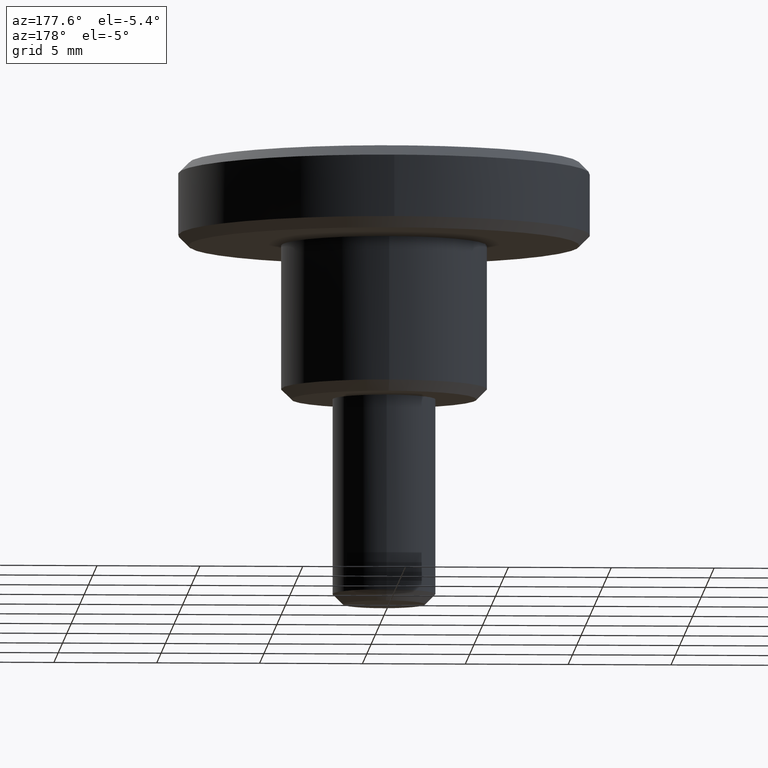
[diagram: clean part render]
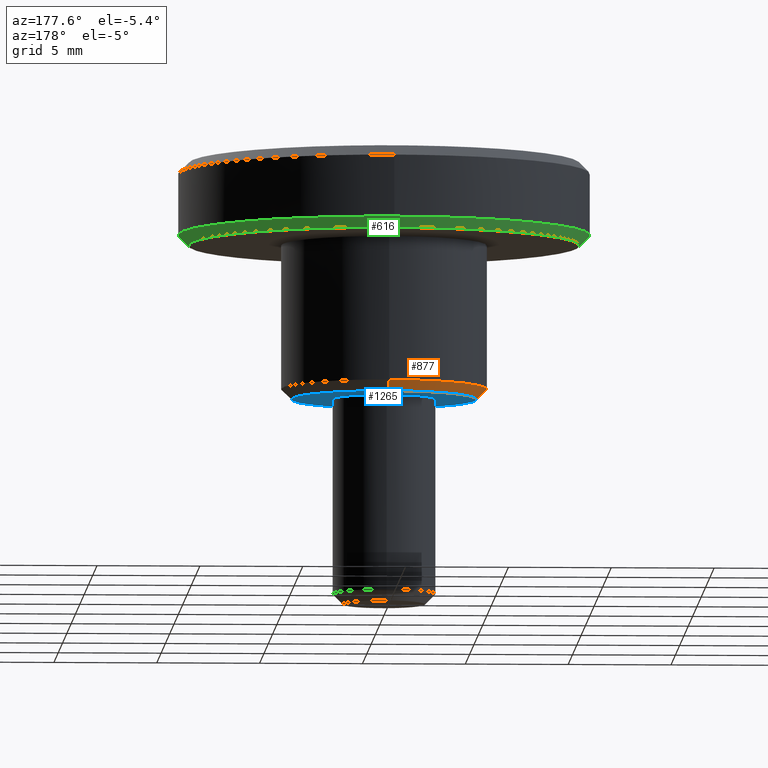
[diagram: same view with three faces highlighted in distinct colors, each labeled with its STEP entity id]
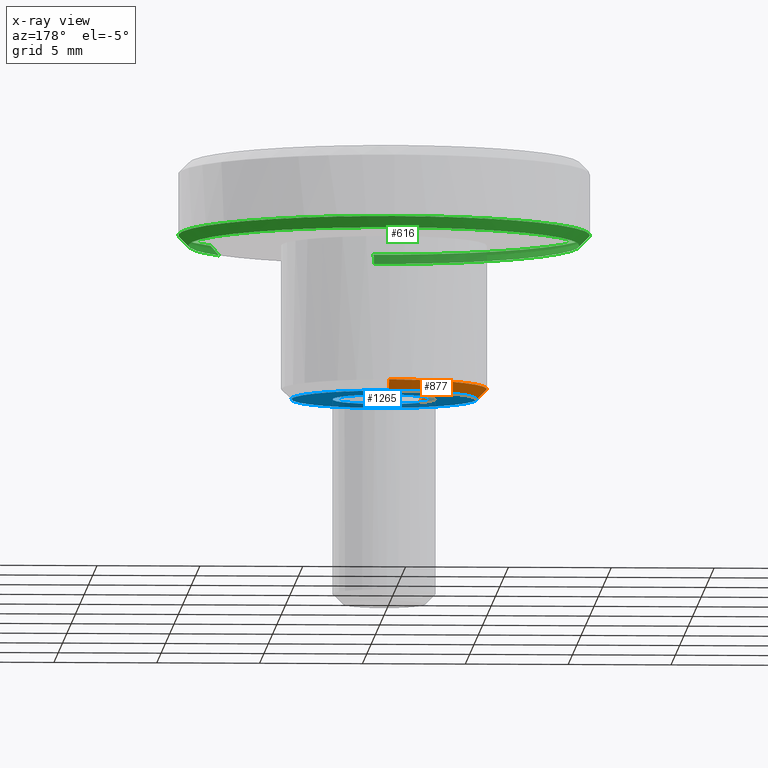
[diagram: x-ray of the same camera — body ghosted, the three highlighted faces saturated]
A machine part, auxiliary view with three faces highlighted in distinct colors.
The next image is the same camera in x-ray (body ghosted, the three faces saturated) — at least one of them is partly hidden behind the body in this view.
Their STEP definitions:

[orange] entity #877 — the highlighted face is a freeform B-spline surface patch.
#699=CARTESIAN_POINT('',(-2.021077159942054,-4.573319047864791,0.500000000000183));
#700=VERTEX_POINT('',#699);
#718=CARTESIAN_POINT('',(-1.818969443966854,-4.115987143071772,1.913012E-012));
#719=VERTEX_POINT('',#718);
#720=CARTESIAN_POINT('',(-1.818969443966854,-4.115987143071772,1.913012E-012));
#721=CARTESIAN_POINT('',(-2.021077159942054,-4.573319047864791,0.500000000000183));
#722=QUASI_UNIFORM_CURVE('',1,(#720,#721),.UNSPECIFIED.,.F.,.U.);
#723=EDGE_CURVE('',#719,#700,#722,.T.);
#742=CARTESIAN_POINT('',(-0.039269409749482,4.499828653789633,9.221313E-013));
#743=VERTEX_POINT('',#742);
#759=CARTESIAN_POINT('',(-0.043630800128547,4.999809631702245,0.499999999999251));
#760=VERTEX_POINT('',#759);
#761=CARTESIAN_POINT('',(-0.039269409749482,4.499828653789633,9.221313E-013));
#762=CARTESIAN_POINT('',(-0.043630800128547,4.999809631702245,0.499999999999251));
#763=QUASI_UNIFORM_CURVE('',1,(#761,#762),.UNSPECIFIED.,.F.,.U.);
#764=EDGE_CURVE('',#743,#760,#763,.T.);
#799=CARTESIAN_POINT('',(-0.039160328048953,4.487329129750467,-0.012499999999999));
#800=CARTESIAN_POINT('',(-4.526489457799420,4.448168801701514,-0.012499999999999));
#801=CARTESIAN_POINT('',(-4.487329129750467,-0.039160328048953,-0.012499999999999));
#802=CARTESIAN_POINT('',(-4.462063944610639,-2.934263788488800,-0.012499999999999));
#803=CARTESIAN_POINT('',(-1.813916751045586,-4.104553845459481,-0.012499999999999));
#804=CARTESIAN_POINT('',(-0.043744486227942,5.012621627460113,0.512812499999944));
#805=CARTESIAN_POINT('',(-5.056366113688056,4.968877141232172,0.512812499999944));
#806=CARTESIAN_POINT('',(-5.012621627460113,-0.043744486227942,0.512812499999944));
#807=CARTESIAN_POINT('',(-4.984398867374600,-3.277752467350195,0.512812499999944));
#808=CARTESIAN_POINT('',(-2.026256170161715,-4.585038177925872,0.512812499999944));
#816=(BOUNDED_SURFACE()B_SPLINE_SURFACE(2,1,((#799,#804),(#800,#805),(#801,#806),(#802,#807),(#803,#808)),.UNSPECIFIED.,.F.,.F.,.U.)B_SPLINE_SURFACE_WITH_KNOTS((3,2,3),(2,2),(0.0,8.305499692533518,14.285459471157649),(0.0,1.0),.UNSPECIFIED.)GEOMETRIC_REPRESENTATION_ITEM()RATIONAL_B_SPLINE_SURFACE(((1.0,1.0),(0.707106781186548,0.707106781186548),(1.0,1.0),(0.789116882454314,0.789116882454314),(0.881905454174416,0.881905454174416)))REPRESENTATION_ITEM('')SURFACE());
#817=CARTESIAN_POINT('',(-5.0,0.0,0.499999999999945));
#818=VERTEX_POINT('',#817);
#819=CARTESIAN_POINT('',(-5.0,0.0,0.499999999999945));
#820=CARTESIAN_POINT('',(-5.0,-3.256850012954106,0.499999999999945));
#821=CARTESIAN_POINT('',(-2.021077159942054,-4.573319047864791,0.500000000000183));
#829=(BOUNDED_CURVE()B_SPLINE_CURVE(2,(#819,#820,#821),.UNSPECIFIED.,.F.,.U.)B_SPLINE_CURVE_WITH_KNOTS((3,3),(0.0,0.181361578459757),.UNSPECIFIED.)CURVE()GEOMETRIC_REPRESENTATION_ITEM()RATIONAL_B_SPLINE_CURVE((1.0,0.787521694063333,0.883326595751699))REPRESENTATION_ITEM(''));
#830=EDGE_CURVE('',#818,#700,#829,.T.);
#831=ORIENTED_EDGE('',*,*,#830,.F.);
#832=CARTESIAN_POINT('',(-0.043630800128547,4.999809631702246,0.499999999999251));
#833=CARTESIAN_POINT('',(-5.000000000000001,4.956557914168263,0.499999999999945));
#834=CARTESIAN_POINT('',(-5.0,0.0,0.499999999999945));
#842=(BOUNDED_CURVE()B_SPLINE_CURVE(2,(#832,#833,#834),.UNSPECIFIED.,.F.,.U.)B_SPLINE_CURVE_WITH_KNOTS((3,3),(0.751539828195666,1.0),.UNSPECIFIED.)CURVE()GEOMETRIC_REPRESENTATION_ITEM()RATIONAL_B_SPLINE_CURVE((0.996414181165367,0.708910802133141,1.0))REPRESENTATION_ITEM(''));
#843=EDGE_CURVE('',#760,#818,#842,.T.);
#844=ORIENTED_EDGE('',*,*,#843,.F.);
#845=ORIENTED_EDGE('',*,*,#764,.F.);
#846=CARTESIAN_POINT('',(-4.500000000000000,0.0,0.0));
#847=VERTEX_POINT('',#846);
#848=CARTESIAN_POINT('',(-4.500000000000000,0.0,0.0));
#849=CARTESIAN_POINT('',(-4.500000000000000,4.460900447663939,0.0));
#850=CARTESIAN_POINT('',(-0.039269409749482,4.499828653789633,9.221313E-013));
#858=(BOUNDED_CURVE()B_SPLINE_CURVE(2,(#848,#849,#850),.UNSPECIFIED.,.F.,.U.)B_SPLINE_CURVE_WITH_KNOTS((3,3),(0.0,0.248460105664481),.UNSPECIFIED.)CURVE()GEOMETRIC_REPRESENTATION_ITEM()RATIONAL_B_SPLINE_CURVE((1.0,0.708910879620798,0.996414028099175))REPRESENTATION_ITEM(''));
#859=EDGE_CURVE('',#847,#743,#858,.T.);
#860=ORIENTED_EDGE('',*,*,#859,.F.);
#861=CARTESIAN_POINT('',(-1.818969443966854,-4.115987143071772,1.913012E-012));
#862=CARTESIAN_POINT('',(-4.500000000000001,-2.931165011630170,0.0));
#863=CARTESIAN_POINT('',(-4.500000000000000,0.0,0.0));
#871=(BOUNDED_CURVE()B_SPLINE_CURVE(2,(#861,#862,#863),.UNSPECIFIED.,.F.,.U.)B_SPLINE_CURVE_WITH_KNOTS((3,3),(0.818638421541633,1.0),.UNSPECIFIED.)CURVE()GEOMETRIC_REPRESENTATION_ITEM()RATIONAL_B_SPLINE_CURVE((0.883326595750230,0.787521694064961,1.0))REPRESENTATION_ITEM(''));
#872=EDGE_CURVE('',#719,#847,#871,.T.);
#873=ORIENTED_EDGE('',*,*,#872,.F.);
#874=ORIENTED_EDGE('',*,*,#723,.T.);
#875=EDGE_LOOP('',(#831,#844,#845,#860,#873,#874));
#876=FACE_OUTER_BOUND('',#875,.T.);
#877=ADVANCED_FACE('',(#876),#816,.T.);

[blue] entity #1265 — the highlighted face is a freeform B-spline surface patch.
#718=CARTESIAN_POINT('',(-1.818969443966854,-4.115987143071772,1.913012E-012));
#719=VERTEX_POINT('',#718);
#725=CARTESIAN_POINT('',(4.500000000000000,0.0,0.0));
#726=VERTEX_POINT('',#725);
#727=CARTESIAN_POINT('',(4.500000000000000,0.0,0.0));
#728=CARTESIAN_POINT('',(4.500000000000000,-4.500000000000000,0.0));
#729=CARTESIAN_POINT('',(0.0,-4.500000000000000,0.0));
#730=CARTESIAN_POINT('',(-0.950020277657045,-4.500000000000001,0.0));
#731=CARTESIAN_POINT('',(-1.818969443966853,-4.115987143071773,1.913012E-012));
#739=(BOUNDED_CURVE()B_SPLINE_CURVE(2,(#727,#728,#729,#730,#731),.UNSPECIFIED.,.F.,.U.)B_SPLINE_CURVE_WITH_KNOTS((3,2,3),(0.500000000000000,0.750000000000000,0.818638421541633),.UNSPECIFIED.)CURVE()GEOMETRIC_REPRESENTATION_ITEM()RATIONAL_B_SPLINE_CURVE((1.0,0.707106781186547,1.0,0.919585087121586,0.883326595750230))REPRESENTATION_ITEM(''));
#740=EDGE_CURVE('',#726,#719,#739,.T.);
#742=CARTESIAN_POINT('',(-0.039269409749482,4.499828653789633,9.221313E-013));
#743=VERTEX_POINT('',#742);
#744=CARTESIAN_POINT('',(-0.039269409749482,4.499828653789633,9.221313E-013));
#745=CARTESIAN_POINT('',(-0.019635078699949,4.499999999999999,0.0));
#746=CARTESIAN_POINT('',(0.0,4.500000000000000,0.0));
#747=CARTESIAN_POINT('',(4.500000000000000,4.500000000000000,0.0));
#748=CARTESIAN_POINT('',(4.500000000000000,0.0,0.0));
#756=(BOUNDED_CURVE()B_SPLINE_CURVE(2,(#744,#745,#746,#747,#748),.UNSPECIFIED.,.F.,.U.)B_SPLINE_CURVE_WITH_KNOTS((3,2,3),(0.248460105664481,0.250000000000000,0.500000000000000),.UNSPECIFIED.)CURVE()GEOMETRIC_REPRESENTATION_ITEM()RATIONAL_B_SPLINE_CURVE((0.996414028099175,0.998195901565749,1.0,0.707106781186547,1.0))REPRESENTATION_ITEM(''));
#757=EDGE_CURVE('',#743,#726,#756,.T.);
#846=CARTESIAN_POINT('',(-4.500000000000000,0.0,0.0));
#847=VERTEX_POINT('',#846);
#848=CARTESIAN_POINT('',(-4.500000000000000,0.0,0.0));
#849=CARTESIAN_POINT('',(-4.500000000000000,4.460900447663939,0.0));
#850=CARTESIAN_POINT('',(-0.039269409749482,4.499828653789633,9.221313E-013));
#858=(BOUNDED_CURVE()B_SPLINE_CURVE(2,(#848,#849,#850),.UNSPECIFIED.,.F.,.U.)B_SPLINE_CURVE_WITH_KNOTS((3,3),(0.0,0.248460105664481),.UNSPECIFIED.)CURVE()GEOMETRIC_REPRESENTATION_ITEM()RATIONAL_B_SPLINE_CURVE((1.0,0.708910879620798,0.996414028099175))REPRESENTATION_ITEM(''));
#859=EDGE_CURVE('',#847,#743,#858,.T.);
#861=CARTESIAN_POINT('',(-1.818969443966854,-4.115987143071772,1.913012E-012));
#862=CARTESIAN_POINT('',(-4.500000000000001,-2.931165011630170,0.0));
#863=CARTESIAN_POINT('',(-4.500000000000000,0.0,0.0));
#871=(BOUNDED_CURVE()B_SPLINE_CURVE(2,(#861,#862,#863),.UNSPECIFIED.,.F.,.U.)B_SPLINE_CURVE_WITH_KNOTS((3,3),(0.818638421541633,1.0),.UNSPECIFIED.)CURVE()GEOMETRIC_REPRESENTATION_ITEM()RATIONAL_B_SPLINE_CURVE((0.883326595750230,0.787521694064961,1.0))REPRESENTATION_ITEM(''));
#872=EDGE_CURVE('',#719,#847,#871,.T.);
#898=CARTESIAN_POINT('',(-0.021812366237410,2.499904842321671,-3.747003E-016));
#899=VERTEX_POINT('',#898);
#905=CARTESIAN_POINT('',(2.500000000000000,0.0,0.0));
#906=VERTEX_POINT('',#905);
#907=CARTESIAN_POINT('',(-0.021812366237410,2.499904842321671,-3.747003E-016));
#908=CARTESIAN_POINT('',(-0.010906390684075,2.500000000000000,0.0));
#909=CARTESIAN_POINT('',(0.0,2.500000000000000,0.0));
#910=CARTESIAN_POINT('',(2.500000000000000,2.500000000000000,0.0));
#911=CARTESIAN_POINT('',(2.500000000000000,0.0,0.0));
#919=(BOUNDED_CURVE()B_SPLINE_CURVE(2,(#907,#908,#909,#910,#911),.UNSPECIFIED.,.F.,.U.)B_SPLINE_CURVE_WITH_KNOTS((3,2,3),(0.248460385567234,0.250000000000000,0.500000000000000),.UNSPECIFIED.)CURVE()GEOMETRIC_REPRESENTATION_ITEM()RATIONAL_B_SPLINE_CURVE((0.996414675873302,0.998196229492223,1.0,0.707106781186548,1.0))REPRESENTATION_ITEM(''));
#920=EDGE_CURVE('',#899,#906,#919,.T.);
#922=CARTESIAN_POINT('',(0.310320005215607,-2.480665534561841,1.740369E-016));
#923=VERTEX_POINT('',#922);
#924=CARTESIAN_POINT('',(2.500000000000000,0.0,0.0));
#925=CARTESIAN_POINT('',(2.499999999999999,-2.206746500346836,0.0));
#926=CARTESIAN_POINT('',(0.310320005215607,-2.480665534561841,1.740369E-016));
#934=(BOUNDED_CURVE()B_SPLINE_CURVE(2,(#924,#925,#926),.UNSPECIFIED.,.F.,.U.)B_SPLINE_CURVE_WITH_KNOTS((3,3),(0.500000000000000,0.728526071027120),.UNSPECIFIED.)CURVE()GEOMETRIC_REPRESENTATION_ITEM()RATIONAL_B_SPLINE_CURVE((1.0,0.732265053896301,0.954005430270490))REPRESENTATION_ITEM(''));
#935=EDGE_CURVE('',#906,#923,#934,.T.);
#974=CARTESIAN_POINT('',(-2.500000000000000,0.0,0.0));
#975=VERTEX_POINT('',#974);
#976=CARTESIAN_POINT('',(0.310320005215607,-2.480665534561842,1.740369E-016));
#977=CARTESIAN_POINT('',(0.155762318849957,-2.500000000000000,0.0));
#978=CARTESIAN_POINT('',(0.0,-2.500000000000000,0.0));
#979=CARTESIAN_POINT('',(-2.500000000000000,-2.500000000000000,0.0));
#980=CARTESIAN_POINT('',(-2.500000000000000,0.0,0.0));
#988=(BOUNDED_CURVE()B_SPLINE_CURVE(2,(#976,#977,#978,#979,#980),.UNSPECIFIED.,.F.,.U.)B_SPLINE_CURVE_WITH_KNOTS((3,2,3),(0.728526071027119,0.750000000000000,1.0),.UNSPECIFIED.)CURVE()GEOMETRIC_REPRESENTATION_ITEM()RATIONAL_B_SPLINE_CURVE((0.954005430270488,0.974841727290245,1.0,0.707106781186548,1.0))REPRESENTATION_ITEM(''));
#989=EDGE_CURVE('',#923,#975,#988,.T.);
#991=CARTESIAN_POINT('',(-2.500000000000000,0.0,0.0));
#992=CARTESIAN_POINT('',(-2.500000000000000,2.478281964782639,0.0));
#993=CARTESIAN_POINT('',(-0.021812366237410,2.499904842321671,-3.747003E-016));
#1001=(BOUNDED_CURVE()B_SPLINE_CURVE(2,(#991,#992,#993),.UNSPECIFIED.,.F.,.U.)B_SPLINE_CURVE_WITH_KNOTS((3,3),(0.0,0.248460385567234),.UNSPECIFIED.)CURVE()GEOMETRIC_REPRESENTATION_ITEM()RATIONAL_B_SPLINE_CURVE((1.0,0.708910551694325,0.996414675873302))REPRESENTATION_ITEM(''));
#1002=EDGE_CURVE('',#975,#899,#1001,.T.);
#1248=CARTESIAN_POINT('',(-4.949549982556253,4.949330796261720,0.0));
#1249=CARTESIAN_POINT('',(4.949550223955065,4.949330796261720,0.0));
#1250=CARTESIAN_POINT('',(-4.949549982556253,-4.948711688776903,0.0));
#1251=CARTESIAN_POINT('',(4.949550223955065,-4.948711688776903,0.0));
#1252=B_SPLINE_SURFACE_WITH_KNOTS('',1,1,((#1248,#1250),(#1249,#1251)),.UNSPECIFIED.,.F.,.F.,.U.,(2,2),(2,2),(0.0,9.899100206511317),(0.0,9.898042485038623),.UNSPECIFIED.);
#1253=ORIENTED_EDGE('',*,*,#859,.T.);
#1254=ORIENTED_EDGE('',*,*,#757,.T.);
#1255=ORIENTED_EDGE('',*,*,#740,.T.);
#1256=ORIENTED_EDGE('',*,*,#872,.T.);
#1257=EDGE_LOOP('',(#1253,#1254,#1255,#1256));
#1258=FACE_OUTER_BOUND('',#1257,.T.);
#1259=ORIENTED_EDGE('',*,*,#1002,.F.);
#1260=ORIENTED_EDGE('',*,*,#989,.F.);
#1261=ORIENTED_EDGE('',*,*,#935,.F.);
#1262=ORIENTED_EDGE('',*,*,#920,.F.);
#1263=EDGE_LOOP('',(#1259,#1260,#1261,#1262));
#1264=FACE_BOUND('',#1263,.T.);
#1265=ADVANCED_FACE('',(#1258,#1264),#1252,.T.);

[green] entity #616 — the highlighted face is a freeform B-spline surface patch.
#461=CARTESIAN_POINT('',(7.768992244344123,-5.445678631476790,7.487500000000110));
#462=CARTESIAN_POINT('',(9.513663739762109,-2.956670330751032,7.487500000000109));
#463=CARTESIAN_POINT('',(9.487138745071432,0.082793005540823,7.487500000000109));
#464=CARTESIAN_POINT('',(9.404345739530609,9.569931750612255,7.487500000000108));
#465=CARTESIAN_POINT('',(-0.082793005540823,9.487138745071432,7.487500000000109));
#466=CARTESIAN_POINT('',(-9.569931750612255,9.404345739530609,7.487500000000108));
#467=CARTESIAN_POINT('',(-9.487138745071432,-0.082793005540823,7.487500000000109));
#468=CARTESIAN_POINT('',(-9.404345739530609,-9.569931750612255,7.487500000000108));
#469=CARTESIAN_POINT('',(0.082793005540823,-9.487138745071432,7.487500000000109));
#470=CARTESIAN_POINT('',(8.199152849177494,-5.747199902211689,8.012812500000122));
#471=CARTESIAN_POINT('',(10.040424897421479,-3.120377933715196,8.012812500000120));
#472=CARTESIAN_POINT('',(10.012431242781030,0.087377163719812,8.012812500000120));
#473=CARTESIAN_POINT('',(9.925054079061219,10.099808406500845,8.012812500000120));
#474=CARTESIAN_POINT('',(-0.087377163719812,10.012431242781030,8.012812500000120));
#475=CARTESIAN_POINT('',(-10.099808406500845,9.925054079061219,8.012812500000120));
#476=CARTESIAN_POINT('',(-10.012431242781030,-0.087377163719812,8.012812500000120));
#477=CARTESIAN_POINT('',(-9.925054079061219,-10.099808406500845,8.012812500000120));
#478=CARTESIAN_POINT('',(0.087377163719812,-10.012431242781030,8.012812500000120));
#486=(BOUNDED_SURFACE()B_SPLINE_SURFACE(2,1,((#461,#470),(#462,#471),(#463,#472),(#464,#473),(#465,#474),(#466,#475),(#467,#476),(#468,#477),(#469,#478)),.UNSPECIFIED.,.F.,.F.,.U.)B_SPLINE_SURFACE_WITH_KNOTS((3,2,2,2,3),(2,2),(0.0,6.635908375998208,23.225679315993730,39.815450255989262,56.405221195984772),(0.0,1.0),.UNSPECIFIED.)GEOMETRIC_REPRESENTATION_ITEM()RATIONAL_B_SPLINE_SURFACE(((0.859411254969543,0.859411254969543),(0.882842712474619,0.882842712474619),(1.0,1.0),(0.707106781186548,0.707106781186548),(1.0,1.0),(0.707106781186548,0.707106781186548),(1.0,1.0),(0.707106781186548,0.707106781186548),(1.0,1.0)))REPRESENTATION_ITEM('')SURFACE());
#487=CARTESIAN_POINT('',(9.500000000000000,0.0,7.500000000000110));
#488=VERTEX_POINT('',#487);
#489=CARTESIAN_POINT('',(7.779228070752922,-5.452853438632870,7.500000000000085));
#490=VERTEX_POINT('',#489);
#491=CARTESIAN_POINT('',(9.500000000000000,0.0,7.500000000000110));
#492=CARTESIAN_POINT('',(9.500000000000000,-2.997941080174381,7.500000000000110));
#493=CARTESIAN_POINT('',(7.779228070752922,-5.452853438632869,7.500000000000085));
#501=(BOUNDED_CURVE()B_SPLINE_CURVE(2,(#491,#492,#493),.UNSPECIFIED.,.F.,.U.)B_SPLINE_CURVE_WITH_KNOTS((3,3),(0.0,0.098673726202873),.UNSPECIFIED.)CURVE()GEOMETRIC_REPRESENTATION_ITEM()RATIONAL_B_SPLINE_CURVE((1.0,0.884396538880492,0.860049271925871))REPRESENTATION_ITEM(''));
#502=EDGE_CURVE('',#488,#490,#501,.T.);
#503=ORIENTED_EDGE('',*,*,#502,.F.);
#504=CARTESIAN_POINT('',(-9.500000000000000,0.0,7.500000000000110));
#505=VERTEX_POINT('',#504);
#506=CARTESIAN_POINT('',(-9.500000000000000,0.0,7.500000000000110));
#507=CARTESIAN_POINT('',(-9.500000000000000,9.500000000000000,7.500000000000110));
#508=CARTESIAN_POINT('',(0.0,9.500000000000000,7.500000000000110));
#509=CARTESIAN_POINT('',(9.500000000000000,9.500000000000000,7.500000000000110));
#510=CARTESIAN_POINT('',(9.500000000000000,0.0,7.500000000000110));
#518=(BOUNDED_CURVE()B_SPLINE_CURVE(2,(#506,#507,#508,#509,#510),.UNSPECIFIED.,.F.,.U.)B_SPLINE_CURVE_WITH_KNOTS((3,2,3),(0.500000000000000,0.750000000000000,1.0),.UNSPECIFIED.)CURVE()GEOMETRIC_REPRESENTATION_ITEM()RATIONAL_B_SPLINE_CURVE((1.0,0.707106781186548,1.0,0.707106781186548,1.0))REPRESENTATION_ITEM(''));
#519=EDGE_CURVE('',#505,#488,#518,.T.);
#520=ORIENTED_EDGE('',*,*,#519,.F.);
#521=CARTESIAN_POINT('',(0.082902087252670,-9.499638269111962,7.500000000002550));
#522=VERTEX_POINT('',#521);
#523=CARTESIAN_POINT('',(0.082902087252670,-9.499638269111962,7.500000000002550));
#524=CARTESIAN_POINT('',(0.041451832814762,-9.499999999999998,7.500000000000109));
#525=CARTESIAN_POINT('',(0.0,-9.500000000000000,7.500000000000110));
#526=CARTESIAN_POINT('',(-9.500000000000000,-9.500000000000000,7.500000000000110));
#527=CARTESIAN_POINT('',(-9.500000000000000,0.0,7.500000000000110));
#535=(BOUNDED_CURVE()B_SPLINE_CURVE(2,(#523,#524,#525,#526,#527),.UNSPECIFIED.,.F.,.U.)B_SPLINE_CURVE_WITH_KNOTS((3,2,3),(0.248460105664342,0.250000000000000,0.500000000000000),.UNSPECIFIED.)CURVE()GEOMETRIC_REPRESENTATION_ITEM()RATIONAL_B_SPLINE_CURVE((0.996414028098853,0.998195901565586,1.0,0.707106781186548,1.0))REPRESENTATION_ITEM(''));
#536=EDGE_CURVE('',#522,#505,#535,.T.);
#537=ORIENTED_EDGE('',*,*,#536,.F.);
#538=CARTESIAN_POINT('',(0.087265354984036,-9.999619230641766,8.000000000000146));
#539=VERTEX_POINT('',#538);
#540=CARTESIAN_POINT('',(0.082902087252670,-9.499638269111962,7.500000000002550));
#541=CARTESIAN_POINT('',(0.087265354984036,-9.999619230641766,8.000000000000146));
#542=QUASI_UNIFORM_CURVE('',1,(#540,#541),.UNSPECIFIED.,.F.,.U.);
#543=EDGE_CURVE('',#522,#539,#542,.T.);
#544=ORIENTED_EDGE('',*,*,#543,.T.);
#545=CARTESIAN_POINT('',(-10.0,0.0,8.000000000000119));
#546=VERTEX_POINT('',#545);
#547=CARTESIAN_POINT('',(-10.0,0.0,8.000000000000119));
#548=CARTESIAN_POINT('',(-10.000000000000002,-10.000000000000002,8.000000000000119));
#549=CARTESIAN_POINT('',(0.0,-10.0,8.000000000000119));
#550=CARTESIAN_POINT('',(0.043633508207315,-9.999999999999998,8.000000000000119));
#551=CARTESIAN_POINT('',(0.087265354984036,-9.999619230641766,8.000000000000146));
#559=(BOUNDED_CURVE()B_SPLINE_CURVE(2,(#547,#548,#549,#550,#551),.UNSPECIFIED.,.F.,.U.)B_SPLINE_CURVE_WITH_KNOTS((3,2,3),(0.0,0.250000000000000,0.251539894334998),.UNSPECIFIED.)CURVE()GEOMETRIC_REPRESENTATION_ITEM()RATIONAL_B_SPLINE_CURVE((1.0,0.707106781186548,1.0,0.998195901566360,0.996414028100381))REPRESENTATION_ITEM(''));
#560=EDGE_CURVE('',#546,#539,#559,.T.);
#561=ORIENTED_EDGE('',*,*,#560,.F.);
#562=CARTESIAN_POINT('',(-0.087258337325771,9.999619291878959,8.000000000000119));
#563=VERTEX_POINT('',#562);
#564=CARTESIAN_POINT('',(-0.087258337325771,9.999619291878959,8.000000000000119));
#565=CARTESIAN_POINT('',(-10.0,9.913119063164983,8.000000000000119));
#566=CARTESIAN_POINT('',(-10.0,0.0,8.000000000000119));
#574=(BOUNDED_CURVE()B_SPLINE_CURVE(2,(#564,#565,#566),.UNSPECIFIED.,.F.,.U.)B_SPLINE_CURVE_WITH_KNOTS((3,3),(0.751539770719286,1.0),.UNSPECIFIED.)CURVE()GEOMETRIC_REPRESENTATION_ITEM()RATIONAL_B_SPLINE_CURVE((0.996414314181917,0.708910734795373,1.0))REPRESENTATION_ITEM(''));
#575=EDGE_CURVE('',#563,#546,#574,.T.);
#576=ORIENTED_EDGE('',*,*,#575,.F.);
#577=CARTESIAN_POINT('',(10.0,0.0,8.000000000000119));
#578=VERTEX_POINT('',#577);
#579=CARTESIAN_POINT('',(10.0,0.0,8.000000000000119));
#580=CARTESIAN_POINT('',(10.000000000000002,10.000000000000002,8.000000000000119));
#581=CARTESIAN_POINT('',(0.0,10.0,8.000000000000119));
#582=CARTESIAN_POINT('',(-0.043629999177642,10.000000000000002,8.000000000000119));
#583=CARTESIAN_POINT('',(-0.087258337325771,9.999619291878959,8.000000000000119));
#591=(BOUNDED_CURVE()B_SPLINE_CURVE(2,(#579,#580,#581,#582,#583),.UNSPECIFIED.,.F.,.U.)B_SPLINE_CURVE_WITH_KNOTS((3,2,3),(0.500000000000000,0.750000000000000,0.751539770719286),.UNSPECIFIED.)CURVE()GEOMETRIC_REPRESENTATION_ITEM()RATIONAL_B_SPLINE_CURVE((1.0,0.707106781186548,1.0,0.998196046391175,0.996414314181917))REPRESENTATION_ITEM(''));
#592=EDGE_CURVE('',#578,#563,#591,.T.);
#593=ORIENTED_EDGE('',*,*,#592,.F.);
#594=CARTESIAN_POINT('',(8.188661127107650,-5.739845724877757,8.000000000000160));
#595=VERTEX_POINT('',#594);
#596=CARTESIAN_POINT('',(8.188661127107650,-5.739845724877757,8.000000000000160));
#597=CARTESIAN_POINT('',(10.000000000000002,-3.155727452816521,8.000000000000119));
#598=CARTESIAN_POINT('',(10.0,0.0,8.000000000000119));
#606=(BOUNDED_CURVE()B_SPLINE_CURVE(2,(#596,#597,#598),.UNSPECIFIED.,.F.,.U.)B_SPLINE_CURVE_WITH_KNOTS((3,3),(0.401326273797088,0.500000000000000),.UNSPECIFIED.)CURVE()GEOMETRIC_REPRESENTATION_ITEM()RATIONAL_B_SPLINE_CURVE((0.860049271925852,0.884396538880448,1.0))REPRESENTATION_ITEM(''));
#607=EDGE_CURVE('',#595,#578,#606,.T.);
#608=ORIENTED_EDGE('',*,*,#607,.F.);
#609=CARTESIAN_POINT('',(7.779228070752922,-5.452853438632870,7.500000000000085));
#610=CARTESIAN_POINT('',(8.188661127107650,-5.739845724877757,8.000000000000160));
#611=QUASI_UNIFORM_CURVE('',1,(#609,#610),.UNSPECIFIED.,.F.,.U.);
#612=EDGE_CURVE('',#490,#595,#611,.T.);
#613=ORIENTED_EDGE('',*,*,#612,.F.);
#614=EDGE_LOOP('',(#503,#520,#537,#544,#561,#576,#593,#608,#613));
#615=FACE_OUTER_BOUND('',#614,.T.);
#616=ADVANCED_FACE('',(#615),#486,.T.);